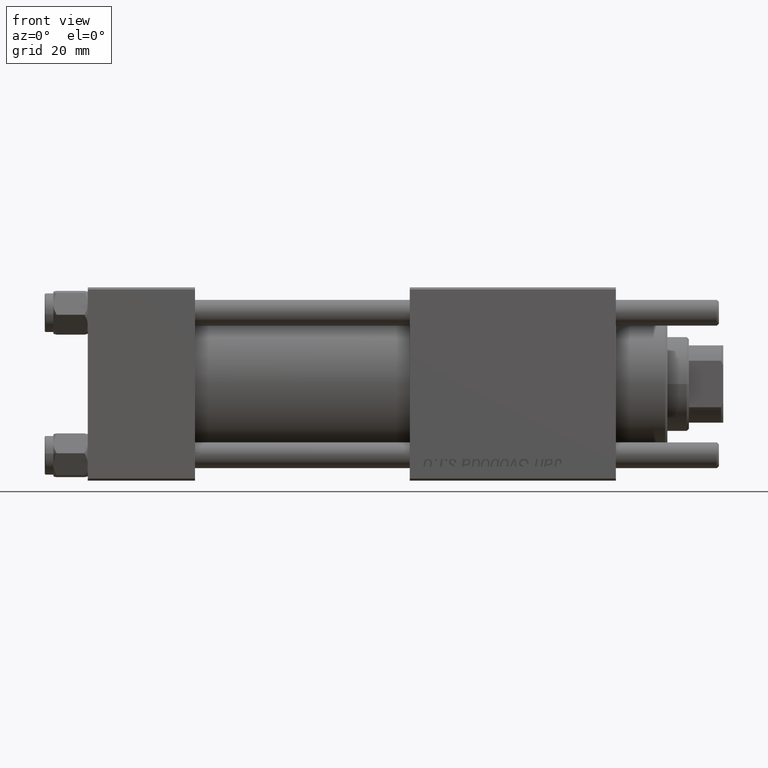
[diagram: clean part render]
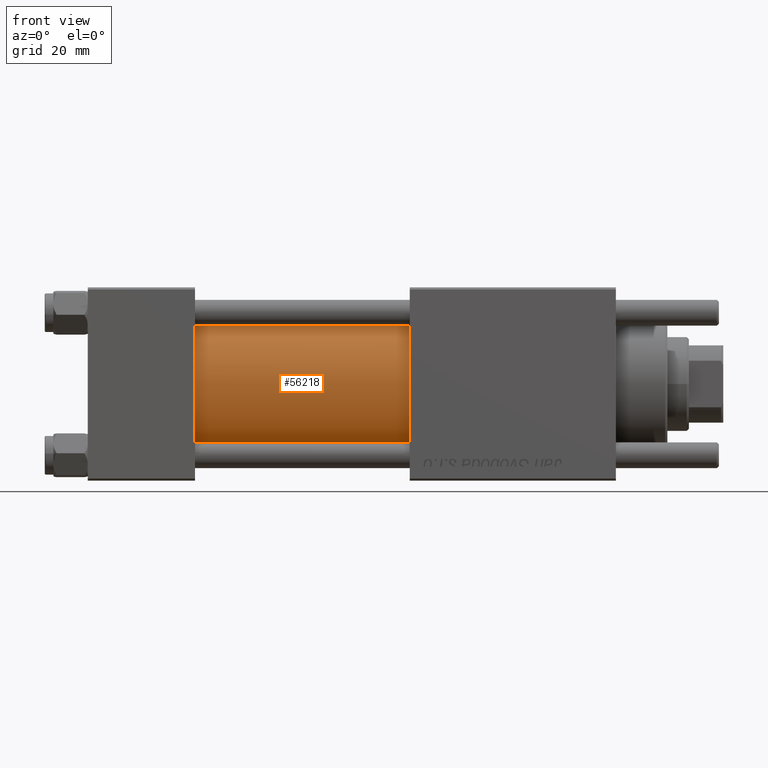
[diagram: same view with one face highlighted and labeled with its STEP entity id]
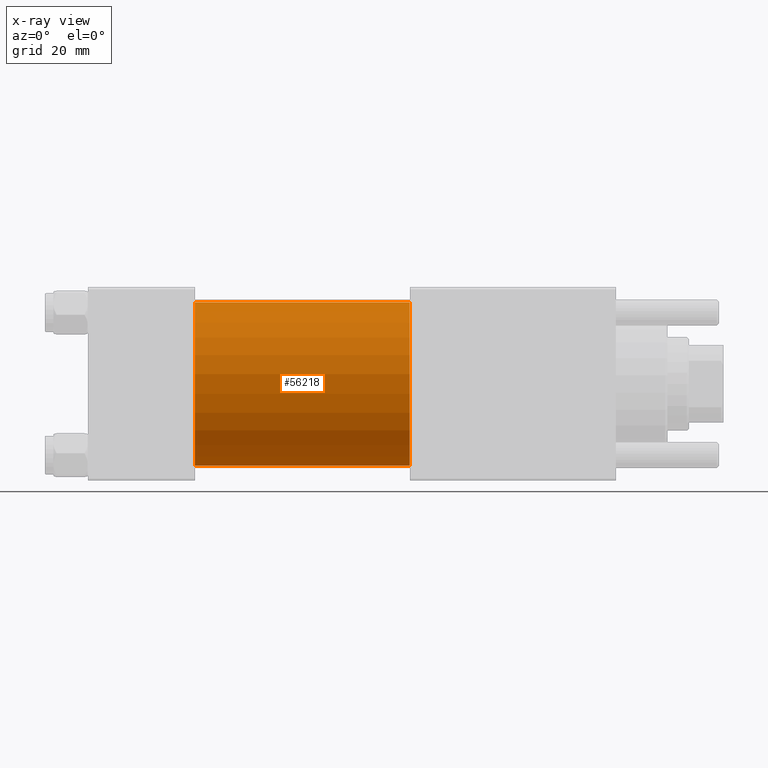
[diagram: x-ray of the same camera — body ghosted, the highlighted face saturated]
A machine part, front view. The second image highlights one B-rep face of the part: STEP entity #56218.
The next image is the same camera in x-ray: the body ghosted, the highlighted face saturated — about 0% of this face is hidden behind the body in this view.
In plain terms, the highlighted cylindrical surface (partial cylindrical patch) has radius 19 mm, axis along (-1, -0, -0).
Its self-contained STEP definition (entity closure, byte-faithful):
#738 = AXIS2_PLACEMENT_3D ( 'NONE', #51012, #50438, #50150 ) ;
#1382 = LINE ( 'NONE', #14899, #32839 ) ;
#1718 = DIRECTION ( 'NONE',  ( 1.000000000000000000, -0.000000000000000000, 0.000000000000000000 ) ) ;
#3266 = EDGE_LOOP ( 'NONE', ( #47973, #14799, #52129, #31212 ) ) ;
#3681 = VERTEX_POINT ( 'NONE', #21526 ) ;
#4432 = DIRECTION ( 'NONE',  ( -1.000000000000000000, -0.000000000000000000, -0.000000000000000000 ) ) ;
#6179 = EDGE_CURVE ( 'NONE', #3681, #51900, #1382, .T. ) ;
#8070 = AXIS2_PLACEMENT_3D ( 'NONE', #41093, #1718, #19279 ) ;
#8709 = AXIS2_PLACEMENT_3D ( 'NONE', #36531, #36252, #23320 ) ;
#11324 = VERTEX_POINT ( 'NONE', #52976 ) ;
#14799 = ORIENTED_EDGE ( 'NONE', *, *, #14814, .F. ) ;
#14814 = EDGE_CURVE ( 'NONE', #32106, #3681, #53956, .T. ) ;
#14899 = CARTESIAN_POINT ( 'NONE',  ( 75.00000000000001421, -2.752562955852396712E-16, -19.00000000000000000 ) ) ;
#15101 = EDGE_CURVE ( 'NONE', #11324, #51900, #44799, .T. ) ;
#18735 = CYLINDRICAL_SURFACE ( 'NONE', #8709, 19.00000000000000000 ) ;
#19279 = DIRECTION ( 'NONE',  ( 0.000000000000000000, 0.000000000000000000, 1.000000000000000000 ) ) ;
#21526 = CARTESIAN_POINT ( 'NONE',  ( 75.00000000000001421, -2.752562955852396712E-16, -19.00000000000000000 ) ) ;
#23320 = DIRECTION ( 'NONE',  ( 0.000000000000000000, 0.000000000000000000, 1.000000000000000000 ) ) ;
#25999 = CARTESIAN_POINT ( 'NONE',  ( 75.00000000000001421, -2.602085213965210642E-15, 19.00000000000000000 ) ) ;
#31212 = ORIENTED_EDGE ( 'NONE', *, *, #15101, .T. ) ;
#32106 = VERTEX_POINT ( 'NONE', #55581 ) ;
#32540 = VECTOR ( 'NONE', #4432, 1000.000000000000000 ) ;
#32839 = VECTOR ( 'NONE', #53991, 1000.000000000000000 ) ;
#36252 = DIRECTION ( 'NONE',  ( -1.000000000000000000, -0.000000000000000000, -0.000000000000000000 ) ) ;
#36531 = CARTESIAN_POINT ( 'NONE',  ( 75.00000000000001421, -2.602085213965210642E-15, 0.000000000000000000 ) ) ;
#41093 = CARTESIAN_POINT ( 'NONE',  ( 25.00000000000000000, -2.602085213965210642E-15, 0.000000000000000000 ) ) ;
#43232 = LINE ( 'NONE', #25999, #32540 ) ;
#43494 = CARTESIAN_POINT ( 'NONE',  ( 25.00000000000000000, -2.752562955852396712E-16, -19.00000000000000000 ) ) ;
#44799 = CIRCLE ( 'NONE', #8070, 19.00000000000000000 ) ;
#47973 = ORIENTED_EDGE ( 'NONE', *, *, #6179, .F. ) ;
#49472 = FACE_OUTER_BOUND ( 'NONE', #3266, .T. ) ;
#50150 = DIRECTION ( 'NONE',  ( 0.000000000000000000, 0.000000000000000000, -1.000000000000000000 ) ) ;
#50438 = DIRECTION ( 'NONE',  ( 1.000000000000000000, 0.000000000000000000, 0.000000000000000000 ) ) ;
#51012 = CARTESIAN_POINT ( 'NONE',  ( 75.00000000000001421, -2.602085213965210642E-15, 0.000000000000000000 ) ) ;
#51900 = VERTEX_POINT ( 'NONE', #43494 ) ;
#52129 = ORIENTED_EDGE ( 'NONE', *, *, #52700, .T. ) ;
#52700 = EDGE_CURVE ( 'NONE', #32106, #11324, #43232, .T. ) ;
#52976 = CARTESIAN_POINT ( 'NONE',  ( 25.00000000000000000, -2.602085213965210642E-15, 19.00000000000000000 ) ) ;
#53956 = CIRCLE ( 'NONE', #738, 19.00000000000000000 ) ;
#53991 = DIRECTION ( 'NONE',  ( -1.000000000000000000, -0.000000000000000000, -0.000000000000000000 ) ) ;
#55581 = CARTESIAN_POINT ( 'NONE',  ( 75.00000000000001421, -2.602085213965210642E-15, 19.00000000000000000 ) ) ;
#56218 = ADVANCED_FACE ( 'NONE', ( #49472 ), #18735, .T. ) ;